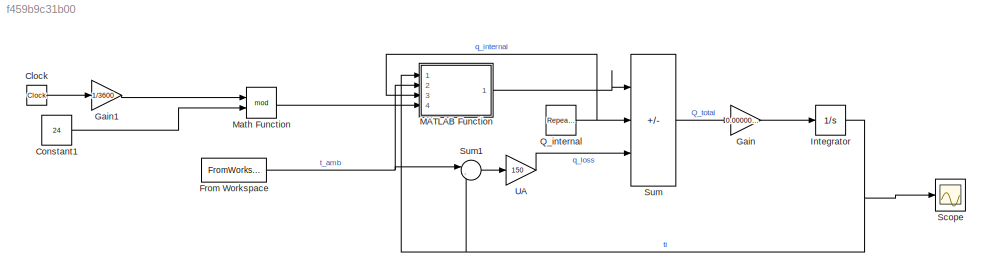
MODEL slx_f459b9c31b00
KIND model
CONFIG AbsTol = auto
CONFIG EnableMultiTasking = off
CONFIG FixedStep = 60
CONFIG MaxStep = auto
CONFIG MinStep = auto
CONFIG RelTol = 1e-3
CONFIG SampleTimeConstraint = Unconstrained
CONFIG SolverName = ode1
CONFIG StartTime = 0.0
CONFIG StopTime = 259200
BLOCK [Clock] Clock
BLOCK [Constant] Constant1
  Value = 24
BLOCK [FromWorkspace] From Workspace
  VariableName = weather_data
BLOCK [Gain] Gain
  Gain = 0.0000025
BLOCK [Gain] Gain1
  Gain = 1/3600
BLOCK [Integrator] Integrator
  InitialCondition = 293.15
  Ports = [1, 1]
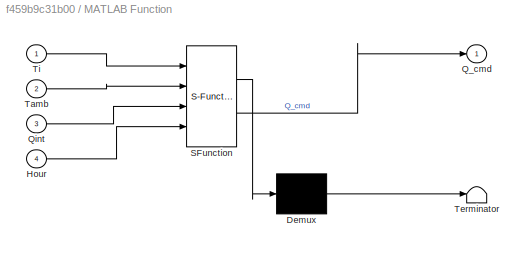
BLOCK [SubSystem] MATLAB Function
  ErrorFcn = Stateflow.Translate.translate
  PermitHierarchicalResolution = ExplicitOnly
  Ports = [4, 1]
  RequestExecContextInheritance = off
  SFBlockType = MATLAB Function
  TreatAsAtomicUnit = on
BLOCK [Demux] MATLAB Function/ Demux 
  Outputs = 1
  Ports = [1, 1]
BLOCK [S-Function] MATLAB Function/ SFunction 
  EnableBusSupport = on
  FunctionName = sf_sfun
  PortCounts = [4 2]
  Ports = [4, 2]
  SFcnIsStateOwnerBlock = off
  SFunctionDeploymentMode = off
  Tag = Stateflow S-Function 2
BLOCK [Terminator] MATLAB Function/ Terminator 
BLOCK [Inport] MATLAB Function/Hour
  Port = 4
BLOCK [Outport] MATLAB Function/Q_cmd
BLOCK [Inport] MATLAB Function/Qint
  Port = 3
BLOCK [Inport] MATLAB Function/Tamb
  Port = 2
BLOCK [Inport] MATLAB Function/Ti
BLOCK [Math] Math Function
  Operator = mod
  Ports = [2, 1]
BLOCK [Reference] Q_internal  REF=simulink/Sources/Repeating
Sequence
  Ports = [0, 1]
  SourceBlock = simulink/Sources/Repeating\nSequence
  SourceProductBaseCode = SL
  SourceType = Repeating table
BLOCK [Scope] Scope
  Floating = off
  NumInputPorts = 1
  Ports = [1]
  ScopeSpecificationString = Simulink.scopes.TimeScopeBlockCfg('CurrentConfiguration', extmgr.ConfigurationSet(extmgr.Configuration('Core','General UI',true),extmgr.Configuration('Core','Source UI',true),extmgr.Configuration('Sources','WiredSimulink',true),extmgr.Configuration('Visuals','Time Domain',true,'SerializedDisplays',{struct('MinYLimReal','276.84703','MaxYLimReal','298.03716','YLabelReal','','MinYLimMag','276.84703',...<+1499ch>
BLOCK [Sum] Sum
  IconShape = rectangular
  Inputs = +|+|-
  Ports = [3, 1]
BLOCK [Sum] Sum1
  Inputs = |-+
  Ports = [2, 1]
BLOCK [Gain] UA
  Gain = 150
LINE Clock:1 -> Gain1:1
LINE Constant1:1 -> Math Function:2
NET From Workspace:1 -> MATLAB Function:2, Sum1:1
LINE Gain1:1 -> Math Function:1
LINE Gain:1 -> Integrator:1
NET Integrator:1 -> MATLAB Function:1, Scope:1, Sum1:2
LINE MATLAB Function:1 -> Sum:1
LINE Math Function:1 -> MATLAB Function:4
NET Q_internal:1 -> MATLAB Function:3, Sum:2
LINE Sum1:1 -> UA:1
LINE Sum:1 -> Gain:1
LINE UA:1 -> Sum:3
note: NET lines group one-source signal fan-out (src -> all destinations, sorted); 1:1 wires keep LINE
CHART MATLAB Function states=1 transitions=1
  STATE_LABEL 'eML_blk_kernel()'
  STATE_LABEL 'SCRIPT:\nfunction Q_cmd = fcn(Ti, Tamb, Qint, Hour)\n    coder.extrinsic(\'py.thermal_api.predict_next_temp\');\n\n    Q_max = 3000;\n    Q_off = 0;\n    T_set = 295.15;\n    \n    % --- SAFETY BAND (Hybrid Control) ---\n    % If we are very cold (more than 2 degrees below setpoint), FORCE HEAT.\n    % This overcomes the "short horizon" issue and ensures we reach the operating zone.\n    if Ti < (T_set - 2.0)\n...<+742ch>'
CHART  states=0 transitions=0
